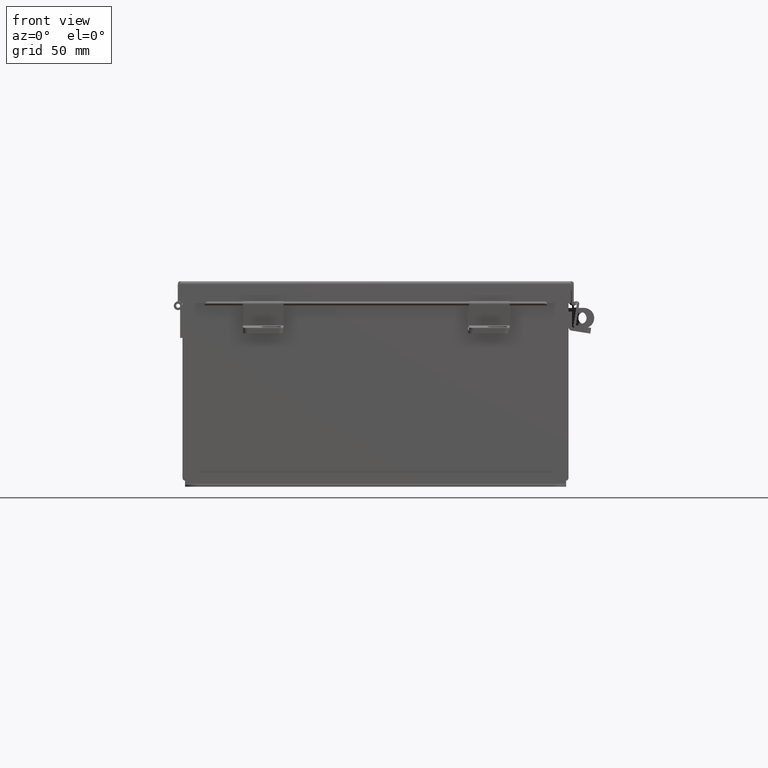
[diagram: clean part render]
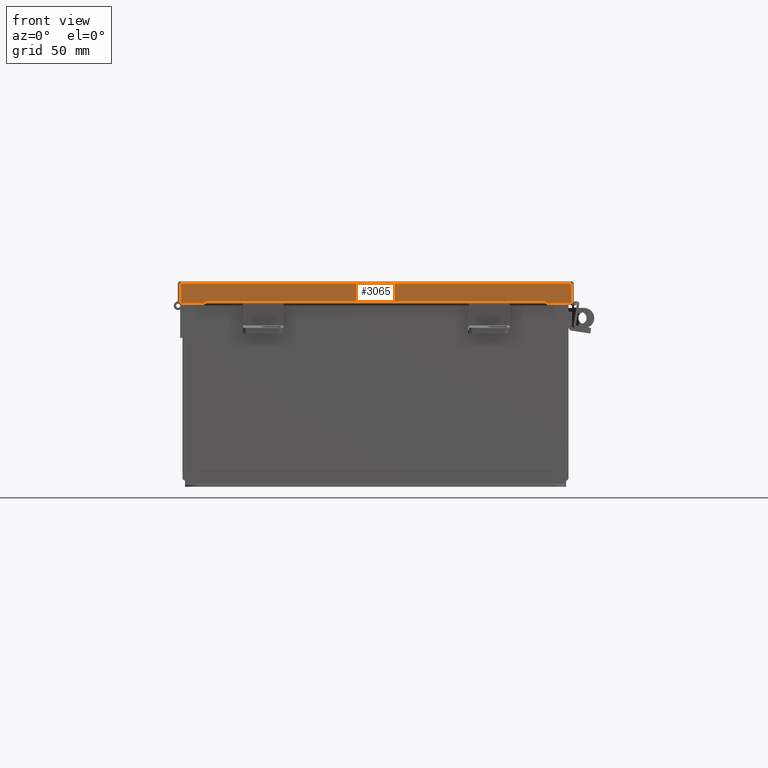
[diagram: same view with one face highlighted and labeled with its STEP entity id]
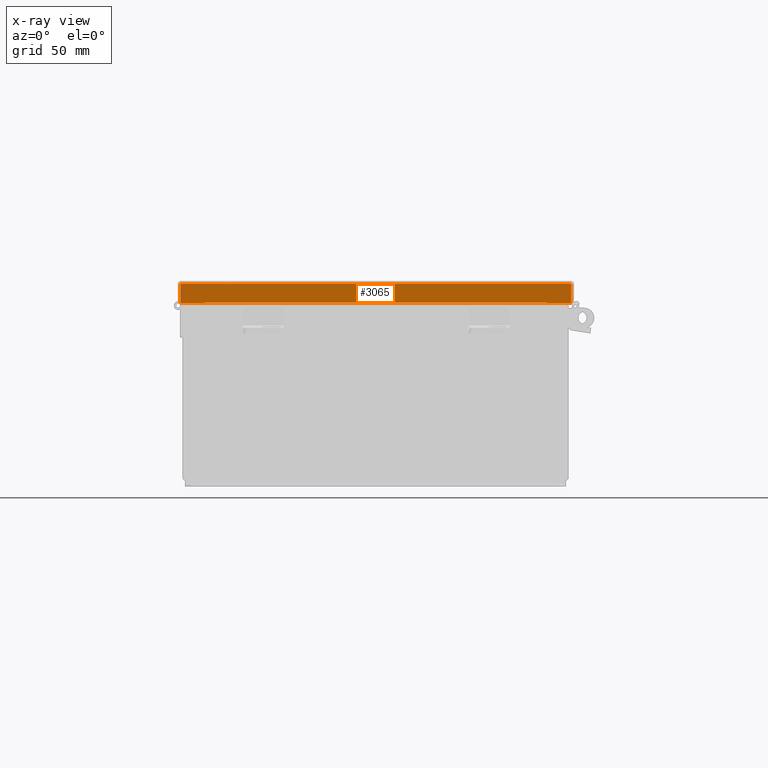
[diagram: x-ray of the same camera — body ghosted, the highlighted face saturated]
A machine part, front view. The second image highlights one B-rep face of the part: STEP entity #3065.
The next image is the same camera in x-ray: the body ghosted, the highlighted face saturated — about 0% of this face is hidden behind the body in this view.
In plain terms, the highlighted planar face has unit normal (0, 1, -0).
Its self-contained STEP definition (entity closure, byte-faithful):
#184 = CARTESIAN_POINT ( 'NONE',  ( -5.324478932188150700, -8.156250000000000000, 0.5967115427318804300 ) ) ;
#433 = LINE ( 'NONE', #917, #19657 ) ;
#539 = LINE ( 'NONE', #184, #4164 ) ;
#546 = DIRECTION ( 'NONE',  ( -1.000000000000000000, -3.216696931258641000E-030, 5.546899479520625800E-018 ) ) ;
#551 = EDGE_CURVE ( 'NONE', #8560, #1789, #10185, .T. ) ;
#917 = CARTESIAN_POINT ( 'NONE',  ( 6.074478932188153400, -8.156250000000000000, -2.950395833157404200E-014 ) ) ;
#1119 = ORIENTED_EDGE ( 'NONE', *, *, #3023, .F. ) ;
#1176 = VECTOR ( 'NONE', #7779, 39.37007874015748100 ) ;
#1415 = EDGE_CURVE ( 'NONE', #19839, #4254, #8450, .T. ) ;
#1606 = CARTESIAN_POINT ( 'NONE',  ( 5.324478932188150700, -8.156250000000000000, 0.5967115427318782100 ) ) ;
#1729 = DIRECTION ( 'NONE',  ( 7.009925220120862500E-014, 2.102977566036251300E-013, -1.000000000000000000 ) ) ;
#1789 = VERTEX_POINT ( 'NONE', #14248 ) ;
#2263 = ORIENTED_EDGE ( 'NONE', *, *, #14639, .T. ) ;
#2549 = EDGE_CURVE ( 'NONE', #3250, #4254, #17395, .T. ) ;
#3023 = EDGE_CURVE ( 'NONE', #14075, #11524, #13718, .T. ) ;
#3065 = ADVANCED_FACE ( 'NONE', ( #16410 ), #14630, .F. ) ;
#3201 = CARTESIAN_POINT ( 'NONE',  ( -6.074478932188154300, -8.156250000000000000, 0.01300000000000010700 ) ) ;
#3250 = VERTEX_POINT ( 'NONE', #18666 ) ;
#3564 = DIRECTION ( 'NONE',  ( 3.183015112497910400E-030, 1.000000000000000000, 3.569293475308493700E-015 ) ) ;
#3682 = CARTESIAN_POINT ( 'NONE',  ( 5.324478932188150700, -8.156250000000001800, 0.5967115427318782100 ) ) ;
#3829 = CARTESIAN_POINT ( 'NONE',  ( 0.0000000000000000000, -8.156250000000000000, -2.950395833157404200E-014 ) ) ;
#4164 = VECTOR ( 'NONE', #4867, 39.37007874015748100 ) ;
#4254 = VERTEX_POINT ( 'NONE', #5942 ) ;
#4836 = AXIS2_PLACEMENT_3D ( 'NONE', #3829, #3564, #17155 ) ;
#4867 = DIRECTION ( 'NONE',  ( 1.000000000000000000, 3.215975411700707400E-030, -0.0000000000000000000 ) ) ;
#4891 = EDGE_CURVE ( 'NONE', #19350, #8560, #17749, .T. ) ;
#5730 = CARTESIAN_POINT ( 'NONE',  ( -5.324478932188150700, -8.156250000000001800, 0.6123000000000005100 ) ) ;
#5927 = ORIENTED_EDGE ( 'NONE', *, *, #1415, .F. ) ;
#5942 = CARTESIAN_POINT ( 'NONE',  ( 5.324478932188149800, -8.156250000000001800, 0.6122999999999994000 ) ) ;
#7541 = DIRECTION ( 'NONE',  ( -1.000000000000000000, -3.191323508412550700E-030, -0.0000000000000000000 ) ) ;
#7779 = DIRECTION ( 'NONE',  ( 0.0000000000000000000, -1.401985044024136600E-013, 1.000000000000000000 ) ) ;
#8014 = ORIENTED_EDGE ( 'NONE', *, *, #15267, .F. ) ;
#8290 = CARTESIAN_POINT ( 'NONE',  ( 1.173840934777613000E-017, -8.156250000000001800, 0.6123000000000005100 ) ) ;
#8450 = LINE ( 'NONE', #1606, #1176 ) ;
#8560 = VERTEX_POINT ( 'NONE', #3201 ) ;
#8568 = DIRECTION ( 'NONE',  ( -1.000000000000000000, -3.216696931258641000E-030, 5.546899479520625800E-018 ) ) ;
#9101 = VECTOR ( 'NONE', #1729, 39.37007874015748100 ) ;
#9293 = CARTESIAN_POINT ( 'NONE',  ( -6.156250000000015100, -8.156250000000000000, 0.01300000000000010700 ) ) ;
#9372 = ORIENTED_EDGE ( 'NONE', *, *, #4891, .F. ) ;
#10020 = CARTESIAN_POINT ( 'NONE',  ( 6.074478932188154300, -8.156250000000000000, 0.01299999999999901400 ) ) ;
#10185 = LINE ( 'NONE', #16234, #13331 ) ;
#10205 = EDGE_CURVE ( 'NONE', #19350, #3250, #433, .T. ) ;
#10266 = VECTOR ( 'NONE', #546, 39.37007874015748100 ) ;
#11142 = CARTESIAN_POINT ( 'NONE',  ( -5.324478932188150700, -8.156250000000003600, 0.6123000000000005100 ) ) ;
#11524 = VERTEX_POINT ( 'NONE', #18744 ) ;
#13257 = VECTOR ( 'NONE', #8568, 39.37007874015748100 ) ;
#13331 = VECTOR ( 'NONE', #19560, 39.37007874015748100 ) ;
#13595 = VECTOR ( 'NONE', #7541, 39.37007874015748100 ) ;
#13718 = LINE ( 'NONE', #11142, #9101 ) ;
#14009 = EDGE_LOOP ( 'NONE', ( #1119, #2263, #19358, #9372, #14422, #15426, #5927, #8014 ) ) ;
#14075 = VERTEX_POINT ( 'NONE', #5730 ) ;
#14248 = CARTESIAN_POINT ( 'NONE',  ( -6.074478932188153400, -8.156250000000001800, 0.6123000000000015100 ) ) ;
#14422 = ORIENTED_EDGE ( 'NONE', *, *, #10205, .T. ) ;
#14630 = PLANE ( 'NONE',  #4836 ) ;
#14639 = EDGE_CURVE ( 'NONE', #14075, #1789, #18070, .T. ) ;
#15267 = EDGE_CURVE ( 'NONE', #11524, #19839, #539, .T. ) ;
#15426 = ORIENTED_EDGE ( 'NONE', *, *, #2549, .T. ) ;
#16234 = CARTESIAN_POINT ( 'NONE',  ( -6.074478932188153400, -8.156250000000000000, 0.0000000000000000000 ) ) ;
#16410 = FACE_OUTER_BOUND ( 'NONE', #14009, .T. ) ;
#17155 = DIRECTION ( 'NONE',  ( 0.0000000000000000000, -3.569293475308493700E-015, 1.000000000000000000 ) ) ;
#17395 = LINE ( 'NONE', #18172, #13257 ) ;
#17749 = LINE ( 'NONE', #9293, #13595 ) ;
#18070 = LINE ( 'NONE', #8290, #10266 ) ;
#18172 = CARTESIAN_POINT ( 'NONE',  ( 1.173840934777613000E-017, -8.156250000000001800, 0.6123000000000005100 ) ) ;
#18666 = CARTESIAN_POINT ( 'NONE',  ( 6.074478932188154300, -8.156250000000001800, 0.6122999999999994000 ) ) ;
#18744 = CARTESIAN_POINT ( 'NONE',  ( -5.324478932188149800, -8.156250000000001800, 0.5967115427318804300 ) ) ;
#19350 = VERTEX_POINT ( 'NONE', #10020 ) ;
#19358 = ORIENTED_EDGE ( 'NONE', *, *, #551, .F. ) ;
#19560 = DIRECTION ( 'NONE',  ( -0.0000000000000000000, -3.569293475308494500E-015, 1.000000000000000000 ) ) ;
#19593 = DIRECTION ( 'NONE',  ( 0.0000000000000000000, -3.569293475308494500E-015, 1.000000000000000000 ) ) ;
#19657 = VECTOR ( 'NONE', #19593, 39.37007874015748100 ) ;
#19839 = VERTEX_POINT ( 'NONE', #3682 ) ;